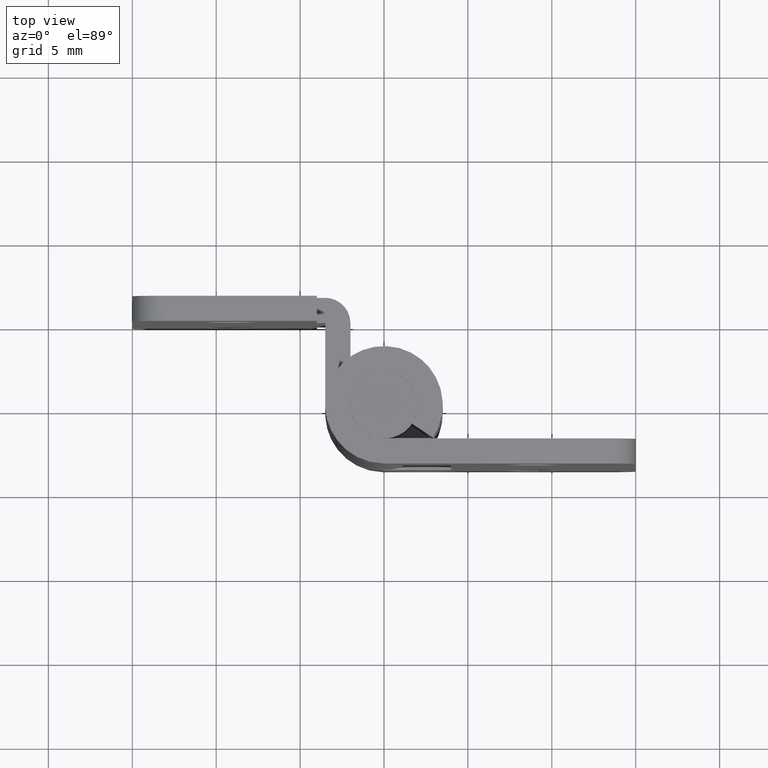
[diagram: clean part render]
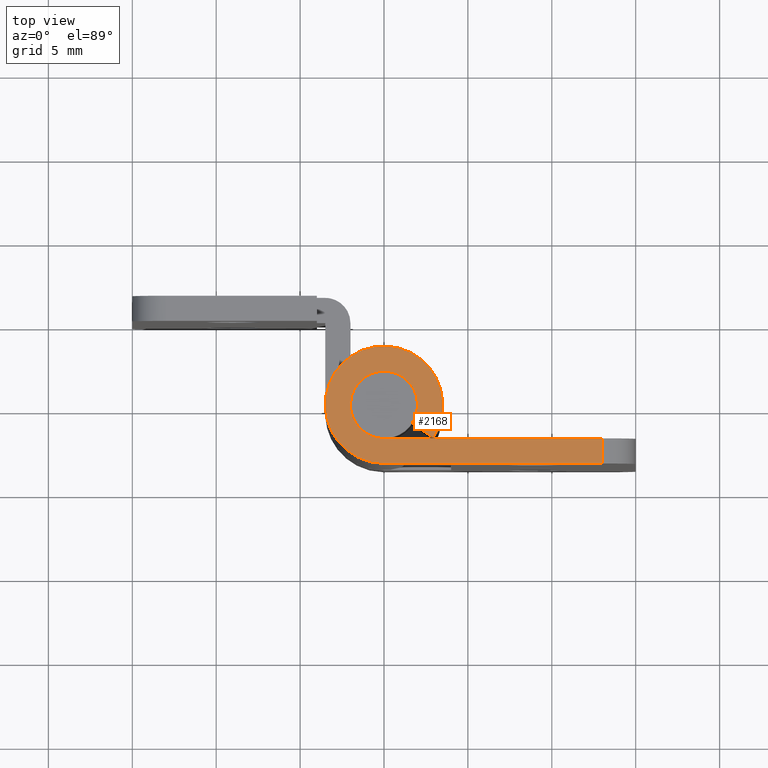
[diagram: same view with one face highlighted and labeled with its STEP entity id]
A machine part, top view. The second image highlights one B-rep face of the part: STEP entity #2168.
In plain terms, the highlighted face is a freeform B-spline surface patch.
Its self-contained STEP definition (entity closure, byte-faithful):
#1745=CARTESIAN_POINT('',(12.999992000000001,-2.0,30.0));
#1746=VERTEX_POINT('',#1745);
#1762=CARTESIAN_POINT('',(12.999992000000001,-3.500003000000000,30.0));
#1763=VERTEX_POINT('',#1762);
#1764=CARTESIAN_POINT('',(12.999992000000001,-3.500003000000000,30.0));
#1765=CARTESIAN_POINT('',(12.999992000000001,-2.0,30.0));
#1766=QUASI_UNIFORM_CURVE('',1,(#1764,#1765),.UNSPECIFIED.,.F.,.U.);
#1767=EDGE_CURVE('',#1763,#1746,#1766,.T.);
#2099=CARTESIAN_POINT('',(-4.323422898395555,-3.849510492003144,30.0));
#2100=CARTESIAN_POINT('',(13.824131251246490,-3.849510492003144,30.0));
#2101=CARTESIAN_POINT('',(-4.323422898395555,3.846649183122933,30.0));
#2102=CARTESIAN_POINT('',(13.824131251246490,3.846649183122933,30.0));
#2103=B_SPLINE_SURFACE_WITH_KNOTS('',1,1,((#2099,#2101),(#2100,#2102)),.UNSPECIFIED.,.F.,.F.,.U.,(2,2),(2,2),(0.0,18.147554149642040),(0.0,7.696159675126078),.UNSPECIFIED.);
#2104=CARTESIAN_POINT('',(0.0,-3.500003000000000,30.0));
#2105=VERTEX_POINT('',#2104);
#2106=CARTESIAN_POINT('',(12.999992000000001,-3.500003000000000,30.0));
#2107=CARTESIAN_POINT('',(0.0,-3.500003000000000,30.0));
#2108=QUASI_UNIFORM_CURVE('',1,(#2106,#2107),.UNSPECIFIED.,.F.,.U.);
#2109=EDGE_CURVE('',#1763,#2105,#2108,.T.);
#2110=ORIENTED_EDGE('',*,*,#2109,.F.);
#2111=ORIENTED_EDGE('',*,*,#1767,.T.);
#2112=CARTESIAN_POINT('',(-3.673819E-016,-2.0,30.0));
#2113=VERTEX_POINT('',#2112);
#2114=CARTESIAN_POINT('',(-3.673819E-016,-2.0,30.0));
#2115=CARTESIAN_POINT('',(12.999992000000001,-2.0,30.0));
#2116=QUASI_UNIFORM_CURVE('',1,(#2114,#2115),.UNSPECIFIED.,.F.,.U.);
#2117=EDGE_CURVE('',#2113,#1746,#2116,.T.);
#2118=ORIENTED_EDGE('',*,*,#2117,.F.);
#2119=CARTESIAN_POINT('',(1.660832901868460,-1.114286351020772,30.0));
#2120=VERTEX_POINT('',#2119);
#2121=CARTESIAN_POINT('',(0.0,-2.0,30.0));
#2122=CARTESIAN_POINT('',(-1.561576920258956,-2.000000000000000,29.999999999999996));
#2123=CARTESIAN_POINT('',(-1.940292265031356,-0.485042190185031,30.0));
#2124=CARTESIAN_POINT('',(-2.319007609803755,1.029915619629939,29.999999999999996));
#2125=CARTESIAN_POINT('',(-0.941123609829883,1.764734073740508,30.0));
#2126=CARTESIAN_POINT('',(0.436760390143991,2.499552527851080,29.999999999999996));
#2127=CARTESIAN_POINT('',(1.483807608084628,1.341012670406277,30.0));
#2128=CARTESIAN_POINT('',(2.530854826025265,0.182472812961476,29.999999999999996));
#2129=CARTESIAN_POINT('',(1.660832901868461,-1.114286351020772,30.0));
#2137=(BOUNDED_CURVE()B_SPLINE_CURVE(2,(#2121,#2122,#2123,#2124,#2125,#2126,#2127,#2128,#2129),.UNSPECIFIED.,.F.,.U.)B_SPLINE_CURVE_WITH_KNOTS((3,2,2,2,3),(0.0,0.250000000000000,0.500000000000000,0.750000000000000,1.0),.UNSPECIFIED.)CURVE()GEOMETRIC_REPRESENTATION_ITEM()RATIONAL_B_SPLINE_CURVE((1.0,0.788200829450374,1.0,0.788200829450374,1.0,0.788200829450374,1.0,0.788200829450374,1.0))REPRESENTATION_ITEM(''));
#2138=EDGE_CURVE('',#2113,#2120,#2137,.T.);
#2139=ORIENTED_EDGE('',*,*,#2138,.T.);
#2140=CARTESIAN_POINT('',(2.906455917436905,-1.950000000000000,30.0));
#2141=VERTEX_POINT('',#2140);
#2142=CARTESIAN_POINT('',(2.906455917436905,-1.950000000000000,30.0));
#2143=CARTESIAN_POINT('',(1.660832901868460,-1.114286351020772,30.0));
#2144=QUASI_UNIFORM_CURVE('',1,(#2142,#2143),.UNSPECIFIED.,.F.,.U.);
#2145=EDGE_CURVE('',#2141,#2120,#2144,.T.);
#2146=ORIENTED_EDGE('',*,*,#2145,.F.);
#2147=CARTESIAN_POINT('',(0.0,-3.500003000000000,30.0));
#2148=CARTESIAN_POINT('',(-2.732758048876253,-3.500006660209949,30.000000000000004));
#2149=CARTESIAN_POINT('',(-3.395509523512607,-0.848831001972426,30.0));
#2150=CARTESIAN_POINT('',(-4.058260998148962,1.802344656265097,30.000000000000004));
#2151=CARTESIAN_POINT('',(-1.646965376078685,3.088280364311815,30.0));
#2152=CARTESIAN_POINT('',(0.764330245991593,4.374216072358533,30.000000000000004));
#2153=CARTESIAN_POINT('',(2.596661830340491,2.346773486389126,30.0));
#2154=CARTESIAN_POINT('',(4.428993414689386,0.319330900419719,30.000000000000004));
#2155=CARTESIAN_POINT('',(2.906455917436905,-1.950000000000000,30.0));
#2163=(BOUNDED_CURVE()B_SPLINE_CURVE(2,(#2147,#2148,#2149,#2150,#2151,#2152,#2153,#2154,#2155),.UNSPECIFIED.,.F.,.U.)B_SPLINE_CURVE_WITH_KNOTS((3,2,2,2,3),(0.0,0.250000000000000,0.500000000000000,0.750000000000000,1.0),.UNSPECIFIED.)CURVE()GEOMETRIC_REPRESENTATION_ITEM()RATIONAL_B_SPLINE_CURVE((1.0,0.788200829450374,1.0,0.788200829450374,1.0,0.788200829450374,1.0,0.788200829450374,1.0))REPRESENTATION_ITEM(''));
#2164=EDGE_CURVE('',#2105,#2141,#2163,.T.);
#2165=ORIENTED_EDGE('',*,*,#2164,.F.);
#2166=EDGE_LOOP('',(#2110,#2111,#2118,#2139,#2146,#2165));
#2167=FACE_OUTER_BOUND('',#2166,.T.);
#2168=ADVANCED_FACE('',(#2167),#2103,.T.);